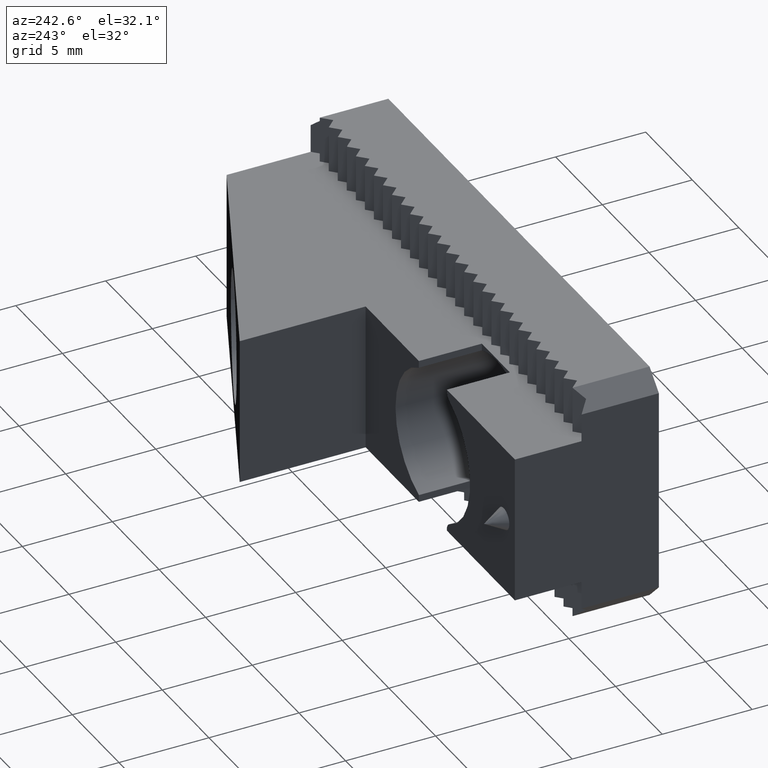
[diagram: clean part render]
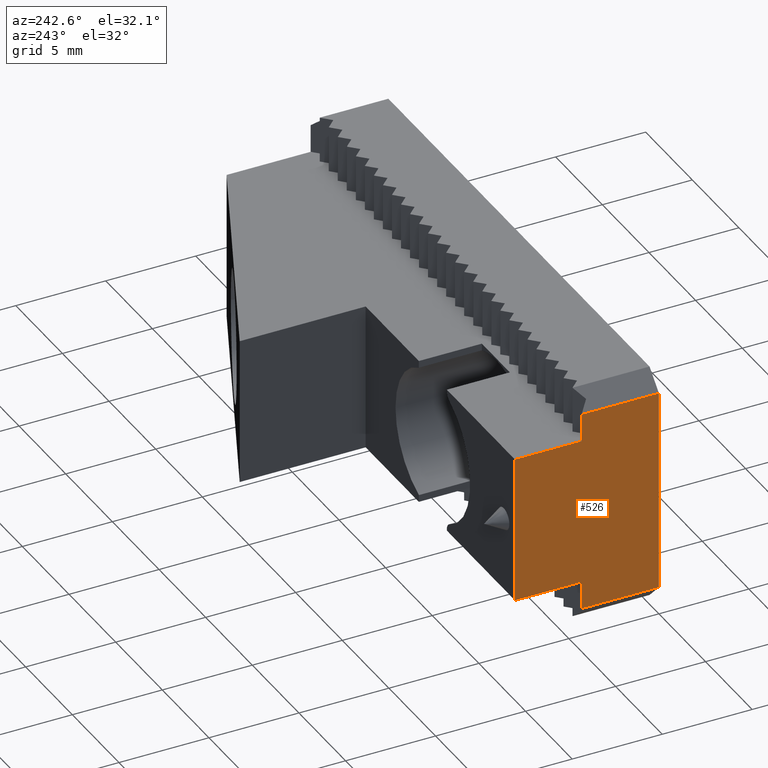
[diagram: same view with one face highlighted and labeled with its STEP entity id]
A machine part, auxiliary view. The second image highlights one B-rep face of the part: STEP entity #526.
In plain terms, the highlighted planar face has unit normal (1, 0, 0).
Its self-contained STEP definition (entity closure, byte-faithful):
#24 = DIRECTION ( 'NONE',  ( -0.0000000000000000000, -0.0000000000000000000, -1.000000000000000000 ) ) ;
#28 = CARTESIAN_POINT ( 'NONE',  ( 0.0000000000000000000, 8.000000000000000000, 6.650000000000000400 ) ) ;
#129 = CARTESIAN_POINT ( 'NONE',  ( 4.336808689942017700E-016, 4.299999999999999800, 5.649999999999993200 ) ) ;
#130 = CARTESIAN_POINT ( 'NONE',  ( 0.0000000000000000000, 0.0000000000000000000, 5.649999999999992400 ) ) ;
#131 = CARTESIAN_POINT ( 'NONE',  ( -8.673617379884037400E-016, 0.0000000000000000000, -5.649999999999993200 ) ) ;
#171 = ORIENTED_EDGE ( 'NONE', *, *, #894, .T. ) ;
#172 = ORIENTED_EDGE ( 'NONE', *, *, #895, .T. ) ;
#173 = ORIENTED_EDGE ( 'NONE', *, *, #896, .F. ) ;
#174 = ORIENTED_EDGE ( 'NONE', *, *, #897, .T. ) ;
#175 = ORIENTED_EDGE ( 'NONE', *, *, #898, .F. ) ;
#176 = ORIENTED_EDGE ( 'NONE', *, *, #899, .F. ) ;
#177 = ORIENTED_EDGE ( 'NONE', *, *, #435, .T. ) ;
#178 = ORIENTED_EDGE ( 'NONE', *, *, #900, .T. ) ;
#235 = VERTEX_POINT ( 'NONE', #393 ) ;
#238 = VERTEX_POINT ( 'NONE', #396 ) ;
#243 = VERTEX_POINT ( 'NONE', #401 ) ;
#253 = VERTEX_POINT ( 'NONE', #411 ) ;
#256 = VERTEX_POINT ( 'NONE', #414 ) ;
#257 = VERTEX_POINT ( 'NONE', #130 ) ;
#258 = VERTEX_POINT ( 'NONE', #131 ) ;
#260 = VERTEX_POINT ( 'NONE', #129 ) ;
#393 = CARTESIAN_POINT ( 'NONE',  ( -2.168404344971008900E-016, 4.299999999999999800, -5.649999999999995900 ) ) ;
#396 = CARTESIAN_POINT ( 'NONE',  ( 0.0000000000000000000, 8.000000000000000000, -4.100000000000001400 ) ) ;
#401 = CARTESIAN_POINT ( 'NONE',  ( 0.0000000000000000000, 8.000000000000000000, 4.100000000000001400 ) ) ;
#411 = CARTESIAN_POINT ( 'NONE',  ( 0.0000000000000000000, 4.299999999999999800, -4.100000000000001400 ) ) ;
#414 = CARTESIAN_POINT ( 'NONE',  ( 2.872071243855944100E-016, 4.299999999999999800, 4.100000000000001400 ) ) ;
#435 = EDGE_CURVE ( 'NONE', #243, #238, #2192, .T. ) ;
#526 = ADVANCED_FACE ( 'NONE', ( #2564 ), #3002, .F. ) ;
#623 = EDGE_LOOP ( 'NONE', ( #171, #172, #173, #174, #175, #176, #177, #178 ) ) ;
#894 = EDGE_CURVE ( 'NONE', #253, #235, #2659, .T. ) ;
#895 = EDGE_CURVE ( 'NONE', #235, #258, #2661, .T. ) ;
#896 = EDGE_CURVE ( 'NONE', #257, #258, #2663, .T. ) ;
#897 = EDGE_CURVE ( 'NONE', #257, #260, #2653, .T. ) ;
#898 = EDGE_CURVE ( 'NONE', #256, #260, #2667, .T. ) ;
#899 = EDGE_CURVE ( 'NONE', #243, #256, #2665, .T. ) ;
#900 = EDGE_CURVE ( 'NONE', #238, #253, #2671, .T. ) ;
#2192 = LINE ( 'NONE', #28, #2198 ) ;
#2198 = VECTOR ( 'NONE', #24, 1000.000000000000000 ) ;
#2564 = FACE_OUTER_BOUND ( 'NONE', #623, .T. ) ;
#2653 = LINE ( 'NONE', #3421, #2668 ) ;
#2659 = LINE ( 'NONE', #3432, #2662 ) ;
#2661 = LINE ( 'NONE', #3434, #2664 ) ;
#2662 = VECTOR ( 'NONE', #3433, 1000.000000000000000 ) ;
#2663 = LINE ( 'NONE', #3436, #2666 ) ;
#2664 = VECTOR ( 'NONE', #3435, 1000.000000000000000 ) ;
#2665 = LINE ( 'NONE', #3425, #2672 ) ;
#2666 = VECTOR ( 'NONE', #3438, 1000.000000000000000 ) ;
#2667 = LINE ( 'NONE', #3440, #2670 ) ;
#2668 = VECTOR ( 'NONE', #3439, 1000.000000000000000 ) ;
#2670 = VECTOR ( 'NONE', #3442, 1000.000000000000000 ) ;
#2671 = LINE ( 'NONE', #3444, #2674 ) ;
#2672 = VECTOR ( 'NONE', #3443, 1000.000000000000000 ) ;
#2674 = VECTOR ( 'NONE', #3445, 1000.000000000000000 ) ;
#2845 = AXIS2_PLACEMENT_3D ( 'NONE', #2994, #3004, #3005 ) ;
#2994 = CARTESIAN_POINT ( 'NONE',  ( 0.0000000000000000000, 0.0000000000000000000, 6.650000000000000400 ) ) ;
#3002 = PLANE ( 'NONE',  #2845 ) ;
#3004 = DIRECTION ( 'NONE',  ( 1.000000000000000000, 0.0000000000000000000, 0.0000000000000000000 ) ) ;
#3005 = DIRECTION ( 'NONE',  ( 0.0000000000000000000, 0.0000000000000000000, -1.000000000000000000 ) ) ;
#3421 = CARTESIAN_POINT ( 'NONE',  ( 0.0000000000000000000, 4.299999999999999800, 5.649999999999992400 ) ) ;
#3425 = CARTESIAN_POINT ( 'NONE',  ( 0.0000000000000000000, 8.000000000000000000, 4.100000000000001400 ) ) ;
#3432 = CARTESIAN_POINT ( 'NONE',  ( 0.0000000000000000000, 4.299999999999999800, -4.100000000000001400 ) ) ;
#3433 = DIRECTION ( 'NONE',  ( -0.0000000000000000000, -0.0000000000000000000, -1.000000000000000000 ) ) ;
#3434 = CARTESIAN_POINT ( 'NONE',  ( 0.0000000000000000000, 0.0000000000000000000, -5.649999999999995900 ) ) ;
#3435 = DIRECTION ( 'NONE',  ( 0.0000000000000000000, -1.000000000000000000, 0.0000000000000000000 ) ) ;
#3436 = CARTESIAN_POINT ( 'NONE',  ( 0.0000000000000000000, 0.0000000000000000000, 6.650000000000000400 ) ) ;
#3438 = DIRECTION ( 'NONE',  ( -0.0000000000000000000, -0.0000000000000000000, -1.000000000000000000 ) ) ;
#3439 = DIRECTION ( 'NONE',  ( 0.0000000000000000000, 1.000000000000000000, 0.0000000000000000000 ) ) ;
#3440 = CARTESIAN_POINT ( 'NONE',  ( 0.0000000000000000000, 4.299999999999999800, 4.100000000000001400 ) ) ;
#3442 = DIRECTION ( 'NONE',  ( -0.0000000000000000000, -0.0000000000000000000, 1.000000000000000000 ) ) ;
#3443 = DIRECTION ( 'NONE',  ( 0.0000000000000000000, -1.000000000000000000, 0.0000000000000000000 ) ) ;
#3444 = CARTESIAN_POINT ( 'NONE',  ( 0.0000000000000000000, 8.000000000000000000, -4.100000000000001400 ) ) ;
#3445 = DIRECTION ( 'NONE',  ( 0.0000000000000000000, -1.000000000000000000, 0.0000000000000000000 ) ) ;